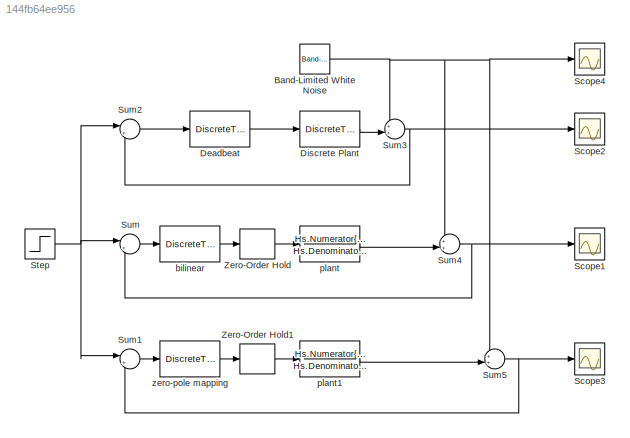
MODEL slx_144fb64ee956
KIND model
CONFIG AbsTol = auto
CONFIG EnableMultiTasking = off
CONFIG FixedStep = auto
CONFIG MaxStep = auto
CONFIG MinStep = auto
CONFIG RelTol = 1e-3
CONFIG SampleTimeConstraint = Unconstrained
CONFIG SolverName = VariableStepAuto
CONFIG StartTime = 0.0
CONFIG StopTime = 800
BLOCK [Reference] Band-Limited White Noise  REF=simulink/Sources/Band-Limited
White Noise
  Ports = [0, 1]
  SourceBlock = simulink/Sources/Band-Limited\nWhite Noise
  SourceProductBaseCode = SL
  SourceType = Band-Limited White Noise.
BLOCK [DiscreteTransferFcn] Deadbeat 
  Denominator = Cz.Denominator{1,1}
  InputPortMap = u0
  Numerator = Cz.Numerator{1,1}
  Ports = [1, 1]
  SampleTime = 5
BLOCK [DiscreteTransferFcn] Discrete Plant
  Denominator = Hz.Denominator{1,1}
  InputPortMap = u0
  Numerator = Hz.Numerator{1,1}
  Ports = [1, 1]
BLOCK [Scope] Scope1
  Floating = off
  NumInputPorts = 1
  Ports = [1]
  ScopeSpecificationString = Simulink.scopes.TimeScopeBlockCfg('CurrentConfiguration', extmgr.ConfigurationSet(extmgr.Configuration('Core','General UI',true),extmgr.Configuration('Core','Source UI',true),extmgr.Configuration('Sources','WiredSimulink',true),extmgr.Configuration('Visuals','Time Domain',true,'SerializedDisplays',{struct('MinYLimReal','-0.20291','MaxYLimReal','1.44836','YLabelReal','','MinYLimMag','0.00000','MaxY...<+1324ch>
BLOCK [Scope] Scope2
  Floating = off
  NumInputPorts = 1
  Ports = [1]
  ScopeSpecificationString = Simulink.scopes.TimeScopeBlockCfg('CurrentConfiguration', extmgr.ConfigurationSet(extmgr.Configuration('Core','General UI',true),extmgr.Configuration('Core','Source UI',true),extmgr.Configuration('Sources','WiredSimulink',true,'DataLoggingVariableName','ScopeData2'),extmgr.Configuration('Visuals','Time Domain',true,'SerializedDisplays',{struct('MinYLimReal','-0.1283','MaxYLimReal','1.31414','YLabe...<+1361ch>
BLOCK [Scope] Scope3
  Floating = off
  NumInputPorts = 1
  Ports = [1]
  ScopeSpecificationString = Simulink.scopes.TimeScopeBlockCfg('CurrentConfiguration', extmgr.ConfigurationSet(extmgr.Configuration('Core','General UI',true),extmgr.Configuration('Core','Source UI',true),extmgr.Configuration('Sources','WiredSimulink',true,'DataLoggingVariableName','ScopeData3'),extmgr.Configuration('Visuals','Time Domain',true,'SerializedDisplays',{struct('MinYLimReal','-0.20291','MaxYLimReal','1.44836','YLab...<+1363ch>
BLOCK [Scope] Scope4
  Floating = off
  NumInputPorts = 1
  Ports = [1]
  ScopeSpecificationString = Simulink.scopes.TimeScopeBlockCfg('CurrentConfiguration', extmgr.ConfigurationSet(extmgr.Configuration('Core','General UI',true),extmgr.Configuration('Core','Source UI',true),extmgr.Configuration('Sources','WiredSimulink',true,'DataLoggingVariableName','ScopeData1'),extmgr.Configuration('Visuals','Time Domain',true,'SerializedDisplays',{struct('MinYLimReal','-0.1283','MaxYLimReal','1.31414','YLabe...<+1361ch>
BLOCK [Step] Step
  SampleTime = 0
BLOCK [Sum] Sum
  Inputs = |+-
  Ports = [2, 1]
BLOCK [Sum] Sum1
  Inputs = |+-
  Ports = [2, 1]
BLOCK [Sum] Sum2
  Inputs = |+-
  Ports = [2, 1]
BLOCK [Sum] Sum3
  Inputs = ++|
  Ports = [2, 1]
BLOCK [Sum] Sum4
  Inputs = ++|
  Ports = [2, 1]
BLOCK [Sum] Sum5
  Inputs = ++|
  Ports = [2, 1]
BLOCK [ZeroOrderHold] Zero-Order Hold
  SampleTime = 5
BLOCK [ZeroOrderHold] Zero-Order Hold1
  SampleTime = 5
BLOCK [DiscreteTransferFcn] bilinear
  Denominator = Cz1.Denominator{1,1}
  InputPortMap = u0
  Numerator = Cz1.Numerator{1,1}
  Ports = [1, 1]
  SampleTime = 5
BLOCK [TransferFcn] plant
  Denominator = Hs.Denominator{1,1}
  Numerator = Hs.Numerator{1,1}
BLOCK [TransferFcn] plant1
  Denominator = Hs.Denominator{1,1}
  Numerator = Hs.Numerator{1,1}
BLOCK [DiscreteTransferFcn] zero-pole mapping
  Denominator = Cz2.Denominator{1,1}
  InputPortMap = u0
  Numerator = Cz2.Numerator{1,1}
  Ports = [1, 1]
  SampleTime = 5
NET Band-Limited White Noise:1 -> Scope4:1, Sum3:1, Sum4:1, Sum5:1
LINE Deadbeat :1 -> Discrete Plant:1
LINE Discrete Plant:1 -> Sum3:2
NET Step:1 -> Sum1:1, Sum2:1, Sum:1
LINE Sum1:1 -> zero-pole mapping:1
LINE Sum2:1 -> Deadbeat :1
NET Sum3:1 -> Scope2:1, Sum2:2
NET Sum4:1 -> Scope1:1, Sum:2
NET Sum5:1 -> Scope3:1, Sum1:2
LINE Sum:1 -> bilinear:1
LINE Zero-Order Hold1:1 -> plant1:1
LINE Zero-Order Hold:1 -> plant:1
LINE bilinear:1 -> Zero-Order Hold:1
LINE plant1:1 -> Sum5:2
LINE plant:1 -> Sum4:2
LINE zero-pole mapping:1 -> Zero-Order Hold1:1
note: NET lines group one-source signal fan-out (src -> all destinations, sorted); 1:1 wires keep LINE
